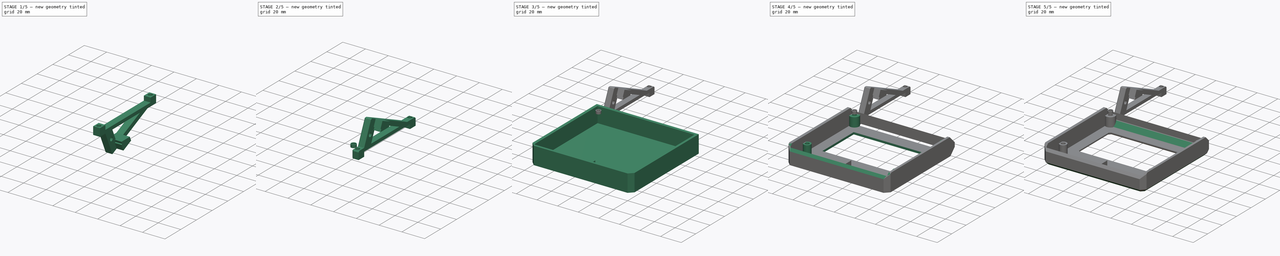
[diagram: build sequence overview — one tinted view per stage of 5, left to right]
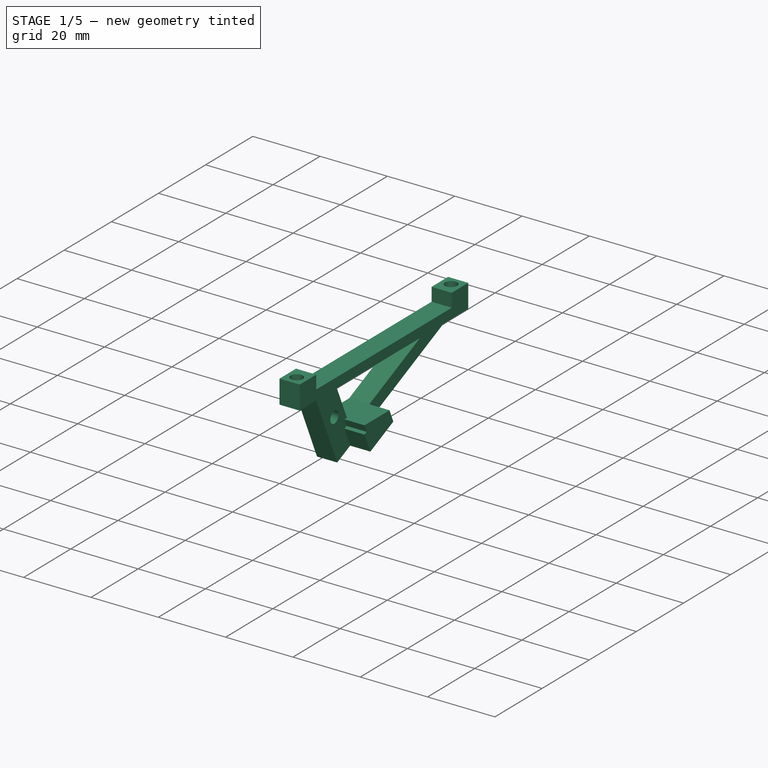
[diagram: stage 1 of 5 — iso view after this stage's code; geometry added in this stage tinted green]
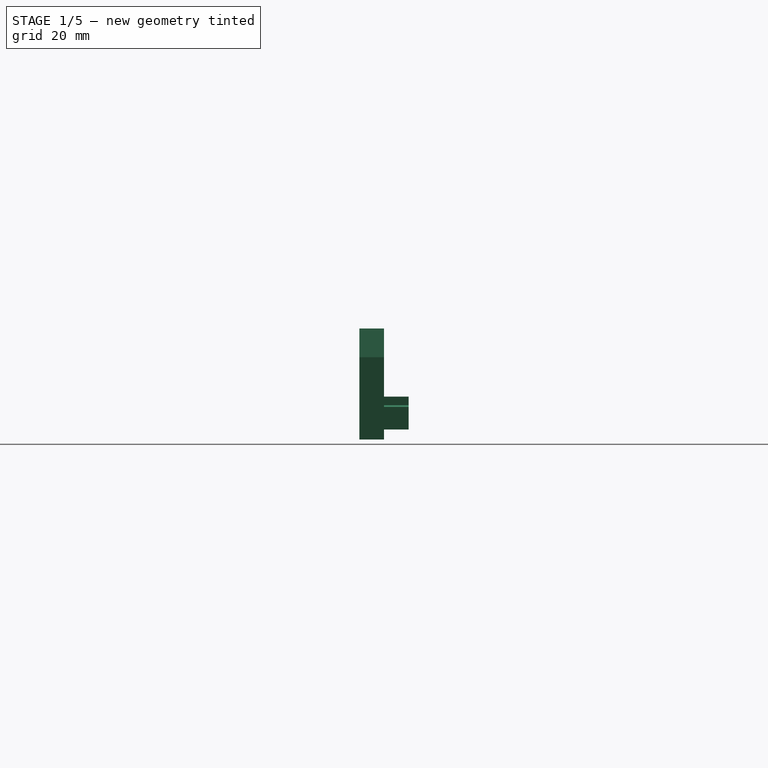
[diagram: stage 1 of 5 — front view after this stage's code; geometry added in this stage tinted green]
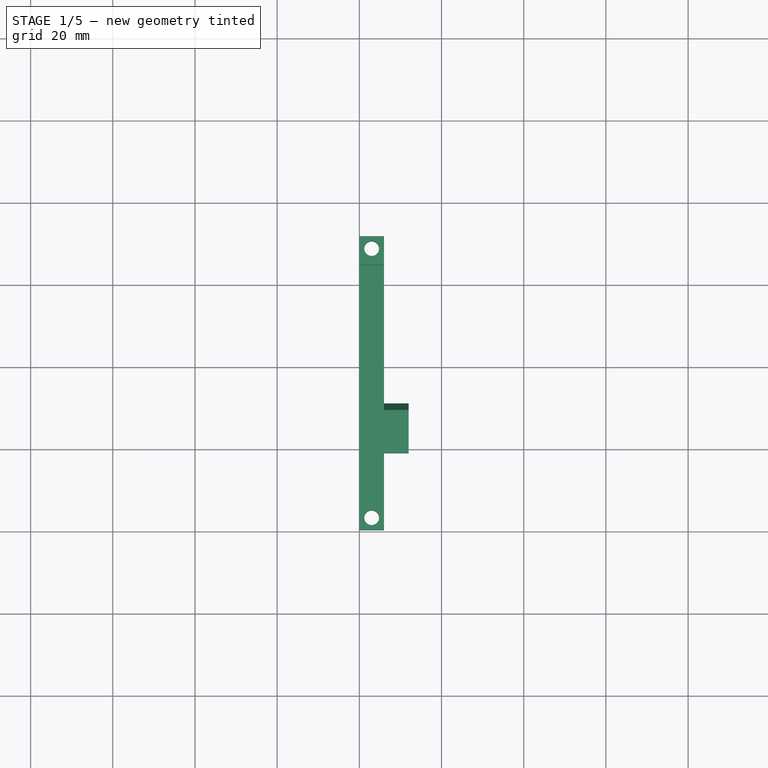
[diagram: stage 1 of 5 — top view after this stage's code; geometry added in this stage tinted green]
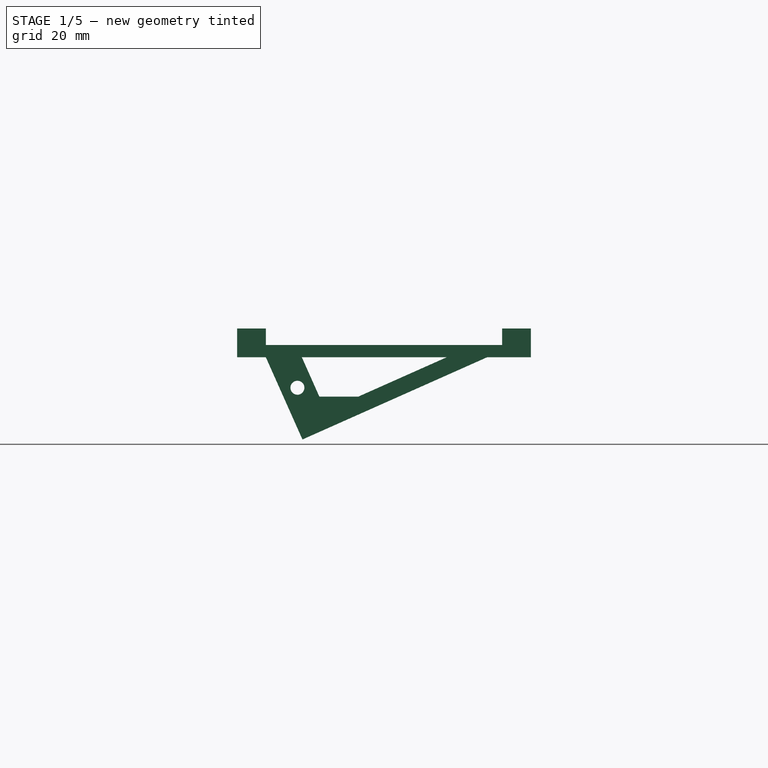
[diagram: stage 1 of 5 — right view after this stage's code; geometry added in this stage tinted green]
FCSTD DOCUMENT  (FreeCAD 0.19R24366 (Git))
Label: reprapdiscount_st7920
License: All rights reserved
LicenseURL: http://en.wikipedia.org/wiki/All_rights_reserved
objects: Sketcher::SketchObject×9, PartDesign::Pad×5, PartDesign::Pocket×4, PartDesign::Chamfer×3, PartDesign::Body×2, Spreadsheet::Sheet×1, Part::Feature×1, Part::Box×1, Part::Fuse×1, Part::FeaturePython×1, Part::Mirroring×1
note: 40 computed .brp shape members not serialized (recipe doc carries the construction recipe); baked Part::Feature solids carry a one-line shape summary decoded from their .brp

FEATURE [Sketcher::SketchObject] Sketch006
  FullyConstrained = true
  MapMode = 5
  Placement = pos=(0,0,0) rot=(0.57735,0.57735,0.57735;2.0944rad)
  Support = -> [YZ_Plane001]
  sketch-geometry (15):
    g0: LineSegment StartX=71.5 StartY=0 StartZ=0 EndX=71.5 EndY=-7 EndZ=0
    g1: LineSegment StartX=0 StartY=-7 StartZ=0 EndX=0 EndY=0 EndZ=0
    g2: LineSegment StartX=0 StartY=0 StartZ=0 EndX=7 EndY=0 EndZ=0
    g3: LineSegment StartX=7 StartY=0 StartZ=0 EndX=7 EndY=-4 EndZ=0
    g4: LineSegment StartX=7 StartY=-4 StartZ=0 EndX=64.5 EndY=-4 EndZ=0
    g5: LineSegment StartX=64.5 StartY=-4 StartZ=0 EndX=64.5 EndY=0 EndZ=0
    g6: LineSegment StartX=64.5 StartY=0 StartZ=0 EndX=71.5 EndY=0 EndZ=0
    g7: LineSegment StartX=0 StartY=-7 StartZ=0 EndX=7 EndY=-7 EndZ=0
    g8: LineSegment StartX=7 StartY=-7 StartZ=0 EndX=15.9046 EndY=-27 EndZ=0
    g9: LineSegment StartX=15.9046 StartY=-27 StartZ=0 EndX=60.8253 EndY=-7 EndZ=0
    g10: LineSegment StartX=60.8253 StartY=-7 StartZ=0 EndX=71.5 EndY=-7 EndZ=0
    g11: Circle CenterX=14.6779 CenterY=-14.4105 CenterZ=0 NormalX=0 NormalY=0 NormalZ=1 AngleXU=0 Radius=1.7
    g12: LineSegment StartX=15.7571 StartY=-7 StartZ=0 EndX=50.9909 EndY=-7 EndZ=0
    g13: LineSegment StartX=50.9909 StartY=-7 StartZ=0 EndX=21.586 EndY=-20.0919 EndZ=0
    g14: LineSegment StartX=21.586 StartY=-20.0919 StartZ=0 EndX=15.7571 EndY=-7 EndZ=0
  constraints (44):
    c: Vertical(g0)
    c: Vertical(g1)
    c: Horizontal(g2)
    c: Coincident(g2,g3)
    c: Vertical(g3)
    c: Coincident(g3,g4)
    c: Horizontal(g4)
    c: Coincident(g4,g5)
    c: Vertical(g5)
    c: Coincident(g5,g6)
    c: Horizontal(g6)
    c: Coincident(g2,g1)
    c: Coincident(g0,g6)
    c: DistanceY(g2,g5) = 0
    c: DistanceY(g4,g5) = 4
    c: DistanceX(g1,g0) = 71.5
    c: DistanceX(g1,g2) = 7
    c: DistanceX(g5,g0) = 7
    c: Coincident(g1,g-1)
    c: Horizontal(g7)
    c: Coincident(g7,g8)
    c: Coincident(g8,g9)
    c: Coincident(g9,g10)
    c: Horizontal(g10)
    c: DistanceY(g7,g1) = 7
    c: DistanceY(g10,g0) = 7
    c: Perpendicular(g8,g9)
    c: Angle(g4,g9) = 0.418879
    c: DistanceY(g8,g1) = 27
    c: Diameter(g11) = 3.4
    c: Coincident(g1,g7)
    c: Coincident(g10,g0)
    c: Horizontal(g12)
    c: Coincident(g12,g13)
    c: Coincident(g13,g14)
    c: Coincident(g14,g12)
    c: DistanceY(g12,g1) = 0
    c: Parallel(g14,g8)
    c: Parallel(g9,g13)
    c: Distance(g11,g8) = 4
    c: Distance(g11,g14) = 4
    c: DistanceX(g1,g7) = 7
    c: Distance(g11,g9) = 12
    c: Distance(g13,g9) = 4
FEATURE [PartDesign::Pad] Pad003  label="Pad"
  Direction = (1,1,1)
  Length = 6
  Length2 = 100
  Placement = pos=(0,0,0) rot=(0.57735,0.57735,0.57735;2.0944rad)
  Profile = -> Sketch006
  Type = 0
FEATURE [Sketcher::SketchObject] Sketch007
  FullyConstrained = true
  MapMode = 5
  Support = -> [XY_Plane001]
  sketch-geometry (2):
    g0: Circle CenterX=3 CenterY=68.5 CenterZ=0 NormalX=0 NormalY=0 NormalZ=1 AngleXU=0 Radius=1.8
    g1: Circle CenterX=3 CenterY=3 CenterZ=0 NormalX=0 NormalY=0 NormalZ=1 AngleXU=0 Radius=1.8
  constraints (6):
    c: Diameter(g0) = 3.6
    c: Diameter(g1) = 3.6
    c: DistanceX(g-1,g0) = 3
    c: DistanceX(g-1,g1) = 3
    c: DistanceY(g1,g0) = 65.5
    c: DistanceY(g-1,g1) = 3
FEATURE [PartDesign::Pocket] Pocket003
  BaseFeature = -> Pad003
  Length = 0
  Length2 = 100
  Placement = pos=(0,0,0) rot=(0.57735,0.57735,0.57735;2.0944rad)
  Profile = -> Sketch007
  Type = 3
  UpToFace = -> Pad003 [Face11]
FEATURE [Sketcher::SketchObject] Sketch008
  ExternalGeometry = -> [Sketch006]
  FullyConstrained = true
  MapMode = 5
  Placement = pos=(0,0,0) rot=(0.57735,0.57735,0.57735;2.0944rad)
  Support = -> [YZ_Plane001]
  sketch-geometry (6):
    g0: LineSegment StartX=21.3858 StartY=-24.5596 StartZ=0 EndX=18.9454 EndY=-19.0783 EndZ=0
    g1: LineSegment StartX=18.9454 StartY=-19.0783 StartZ=0 EndX=19.859 EndY=-18.6716 EndZ=0
    g2: LineSegment StartX=19.859 StartY=-18.6716 StartZ=0 EndX=18.9187 EndY=-16.5596 EndZ=0
    g3: LineSegment StartX=18.9187 StartY=-16.5596 StartZ=0 EndX=29.5198 EndY=-16.5596 EndZ=0
    g4: LineSegment StartX=31.1467 StartY=-20.2138 StartZ=0 EndX=21.3858 EndY=-24.5596 EndZ=0
    g5: LineSegment StartX=29.5198 StartY=-16.5596 StartZ=0 EndX=31.1467 EndY=-20.2138 EndZ=0
  constraints (18):
    c: Coincident(g0,g1)
    c: Coincident(g1,g2)
    c: Coincident(g2,g3)
    c: Horizontal(g3)
    c: Coincident(g0,g4)
    c: Parallel(g2,g0)
    c: Parallel(g-5,g4)
    c: Perpendicular(g0,g4)
    c: Parallel(g1,g4)
    c: Distance(g0,g2) = 1
    c: Distance(g-3,g2) = 3
    c: PointOnObject(g0,g-5)
    c: Coincident(g5,g3)
    c: Coincident(g5,g4)
    c: Parallel(g2,g5)
    c: PointOnObject(g3,g-4)
    c: Distance(g0,g-4) = 2
    c: DistanceY(g0,g2) = 8
FEATURE [PartDesign::Pad] Pad004
  BaseFeature = -> Pocket003
  Direction = (1,1,1)
  Length = 12
  Length2 = 100
  Placement = pos=(0,0,0) rot=(0.57735,0.57735,0.57735;2.0944rad)
  Profile = -> Sketch008
  Type = 0
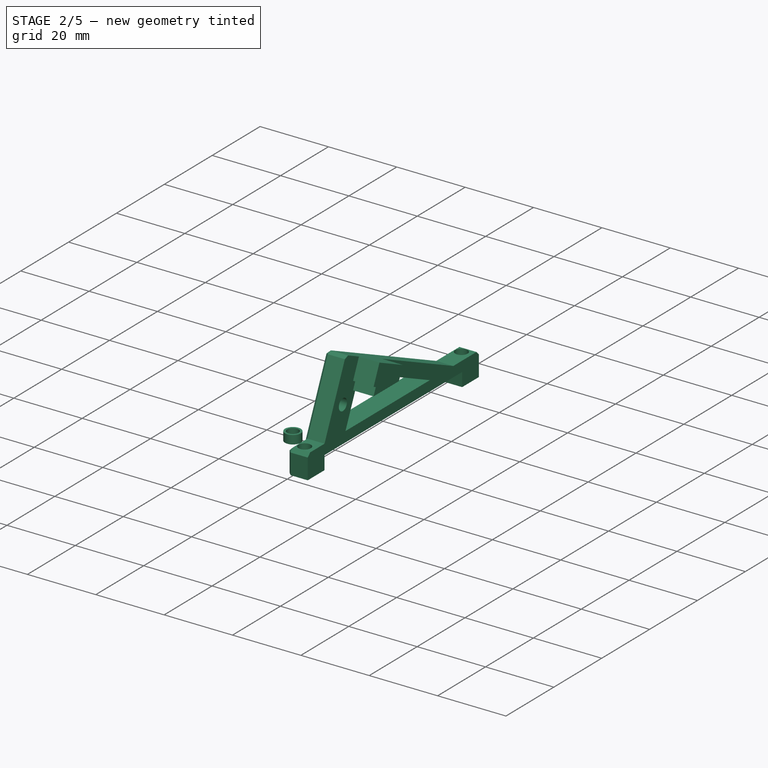
[diagram: stage 2 of 5 — iso view after this stage's code; geometry added in this stage tinted green]
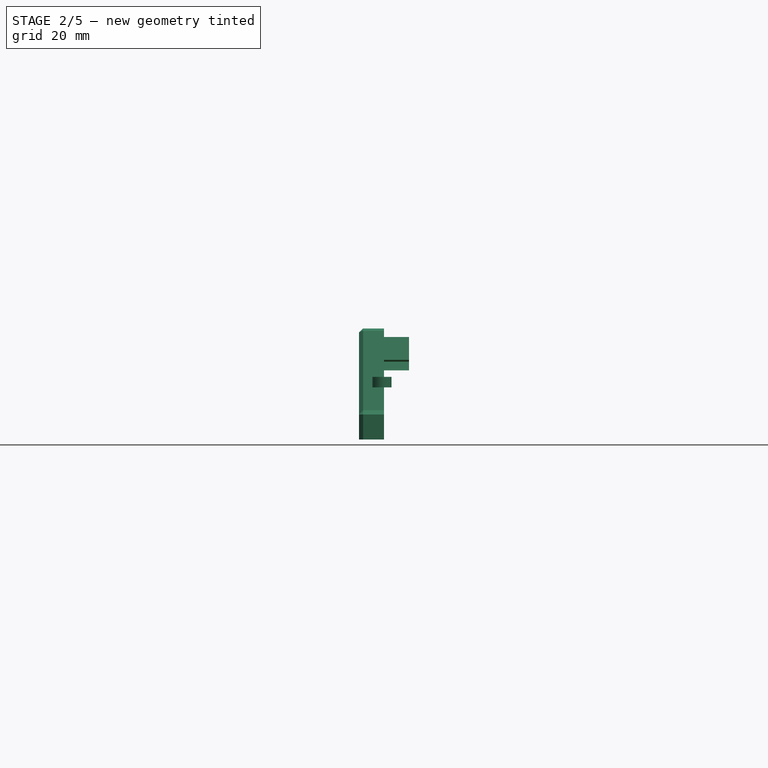
[diagram: stage 2 of 5 — front view after this stage's code; geometry added in this stage tinted green]
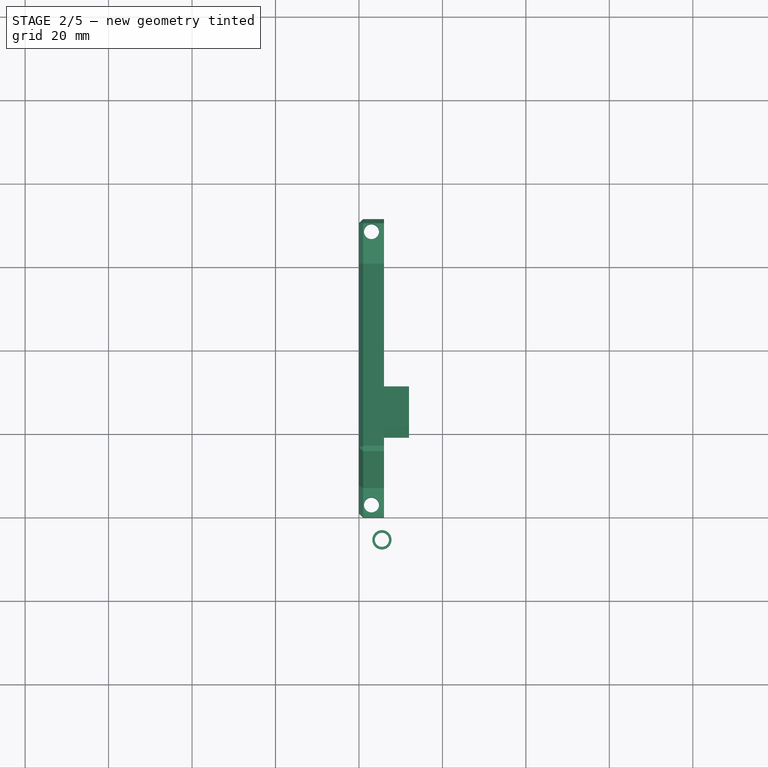
[diagram: stage 2 of 5 — top view after this stage's code; geometry added in this stage tinted green]
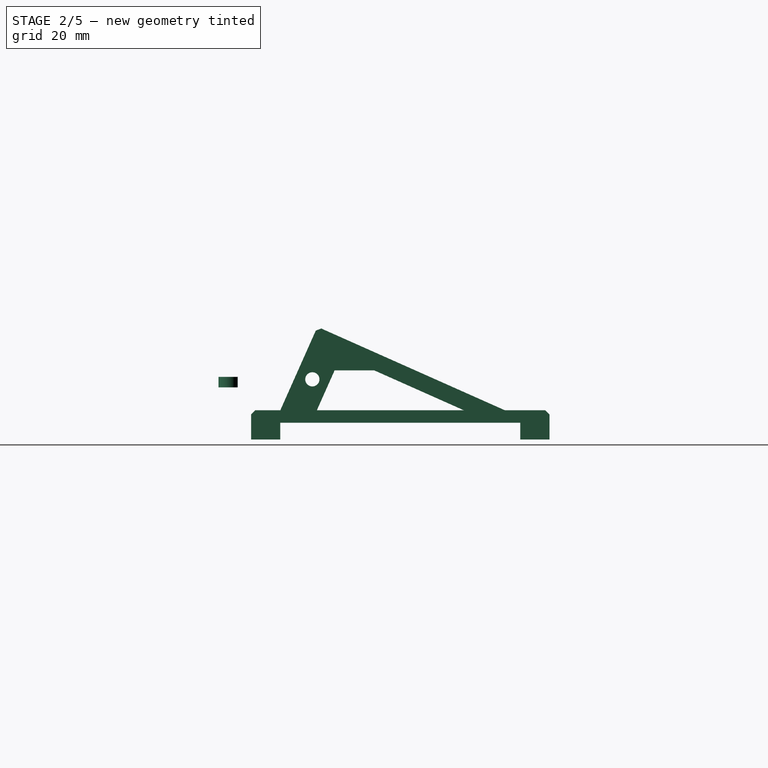
[diagram: stage 2 of 5 — right view after this stage's code; geometry added in this stage tinted green]
FEATURE [Part::FeaturePython] Tube  label="spacer"  # WARN: FeaturePython — macro-defined, semantics opaque (R4)
  AttacherType = Attacher::AttachEngine3D
  Height = 2.5
  InnerRadius = 1.7
  OuterRadius = 2.3
  Placement = pos=(5.5,-5.5,12.5) rot=(0,0,1;0rad)
FEATURE [PartDesign::Chamfer] Chamfer002
  Angle = 45
  Base = -> Pad004 [Edge24,Edge23,Edge53,Edge14,Edge13,Edge5,Edge1,Edge49,Edge62,Edge3,Edge25]
  BaseFeature = -> Pad004
  ChamferType = 0
  FlipDirection = false
  Placement = pos=(0,0,0) rot=(0.57735,0.57735,0.57735;2.0944rad)
  Size = 1
  Size2 = 1
  SupportTransform = false
FEATURE [PartDesign::Body] Body001  label="support"
  Group = -> [Sketch006,Pad003,Sketch007,Pocket003,Sketch008,Pad004,Chamfer002]
  Origin = -> Origin001
  Tip = -> Chamfer002
FEATURE [Part::Mirroring] Part__Mirroring  label="support-mirror"
  Base = (0,0,0)
  Normal = (0,0,1)
  Source = -> Body001
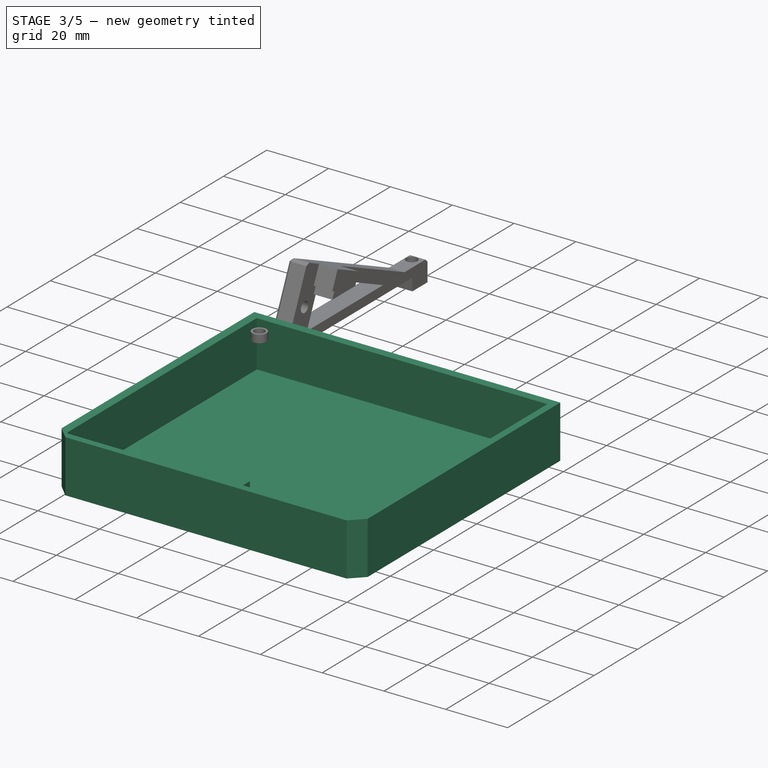
[diagram: stage 3 of 5 — iso view after this stage's code; geometry added in this stage tinted green]
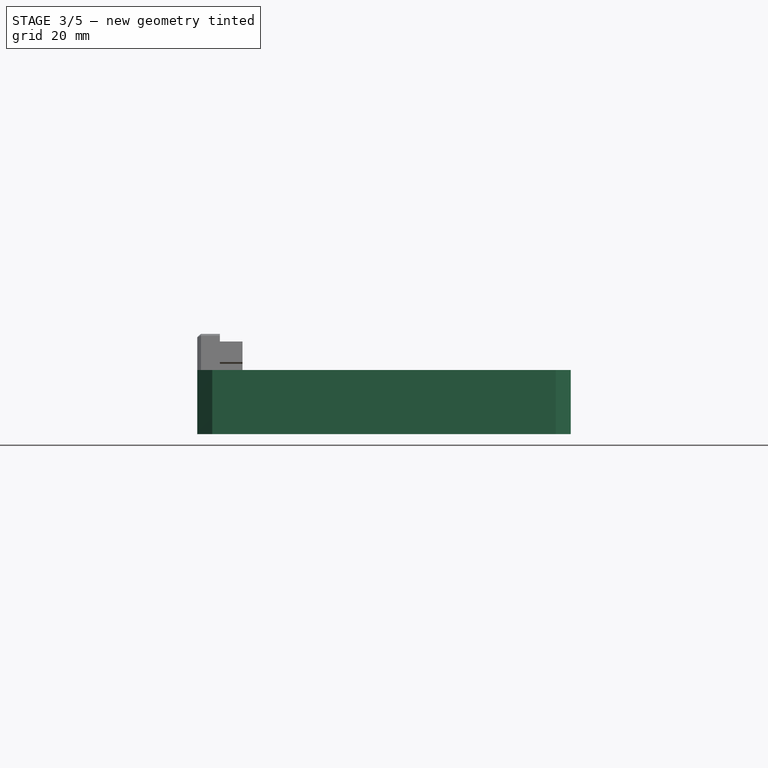
[diagram: stage 3 of 5 — front view after this stage's code; geometry added in this stage tinted green]
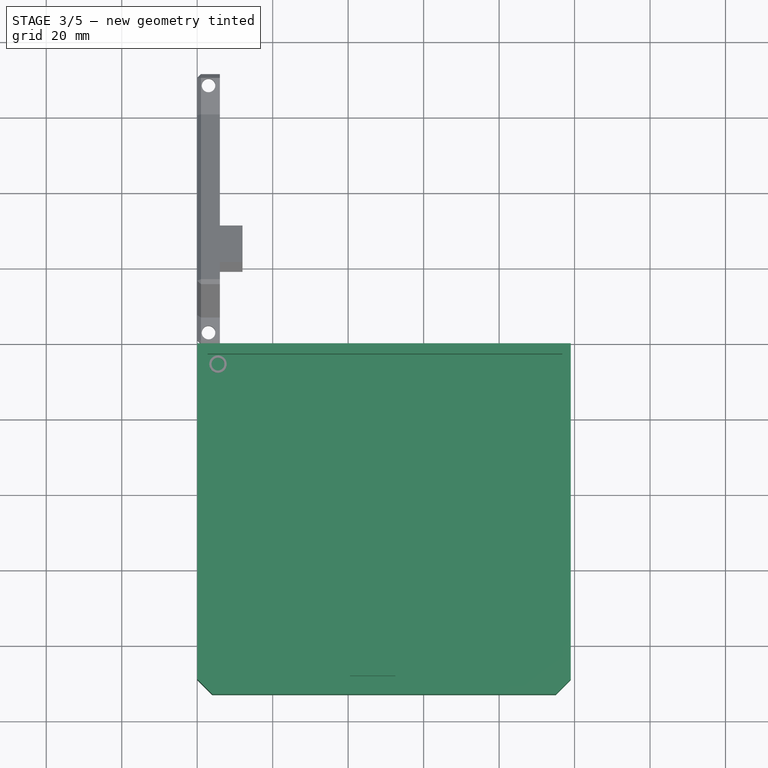
[diagram: stage 3 of 5 — top view after this stage's code; geometry added in this stage tinted green]
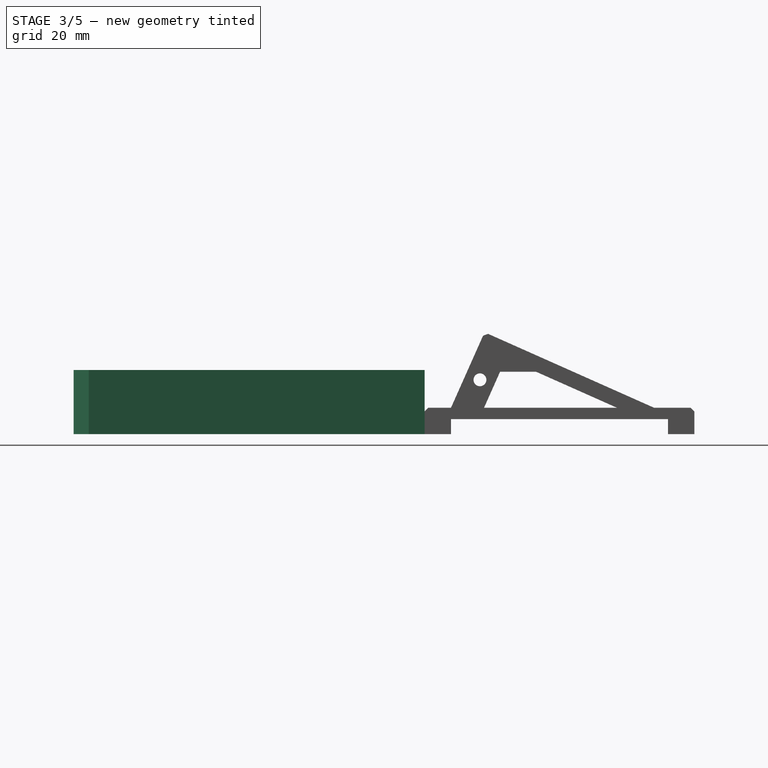
[diagram: stage 3 of 5 — right view after this stage's code; geometry added in this stage tinted green]
FEATURE [Sketcher::SketchObject] Sketch
  FullyConstrained = true
  MapMode = 5
  Support = -> [XY_Plane]
  expr: Constraints[9] = <<parameters>>.board_height + <<parameters>>.wall_thickness * 2 + 1
  expr: Constraints[6] = <<parameters>>.board_width + <<parameters>>.wall_thickness * 2 + 0.5
  sketch-geometry (6):
    g0: LineSegment StartX=0 StartY=0 StartZ=0 EndX=99 EndY=0 EndZ=0
    g1: LineSegment StartX=99 StartY=0 StartZ=0 EndX=99 EndY=-89 EndZ=0
    g2: LineSegment StartX=95 StartY=-93 StartZ=0 EndX=4 EndY=-93 EndZ=0
    g3: LineSegment StartX=0 StartY=-89 StartZ=0 EndX=0 EndY=0 EndZ=0
    g4: LineSegment StartX=0 StartY=-89 StartZ=0 EndX=4 EndY=-93 EndZ=0
    g5: LineSegment StartX=95 StartY=-93 StartZ=0 EndX=99 EndY=-89 EndZ=0
  constraints (18):
    c: Coincident(g0,g1)
    c: Coincident(g3,g0)
    c: Horizontal(g0)
    c: Horizontal(g2)
    c: Vertical(g1)
    c: Vertical(g3)
    c: DistanceX(g0,g0) = 99
    c: DistanceY(g-1,g0) = 0
    c: DistanceX(g0,g-1) = 0
    c: DistanceY(g4,g0) = 93
    c: Coincident(g2,g4)
    c: Coincident(g5,g2)
    c: Perpendicular(g4,g5)
    c: Coincident(g4,g3)
    c: Coincident(g1,g5)
    c: DistanceX(g0,g2) = 4
    c: DistanceX(g2,g1) = 4
    c: DistanceY(g3,g1) = 0
FEATURE [Spreadsheet::Sheet] Spreadsheet  label="parameters"
  cells = A1=board_height; B1(board_height)=87; A2=board_width; B2(board_width)=93.5; A3=hole_spacing_horizontal; B3(hole_spacing_horizontal)=88; A4=hole_spacing_vertical; B4(hole_spacing_vertical)=65.5; A5=hole_diameter; B5(hole_diameter)=3; A6=knob_axis_diameter; B6(knob_axis_diameter)=7.5; A7=knob_from_top; B7(knob_from_top)=79; A8=knob_from_right; B8(knob_from_right)=10; A9=kill_from_right; B9(kill_from_right)=43.5; A10=lcd_width; B10(lcd_width)=74; A11=lcd_height; B11(lcd_height)=43; A12=lcd_from_top; B12(lcd_from_top)=13.5; A13=lcd_from_right; B13(lcd_from_right)=9.5; A14=wall_thickness; B14(wall_thickness)=2.5; A15=board_thickness; B15(board_thickness)=2.5; A16=board_thickness2; B16(board_thickness2)=10; A17=lcd_thickness; B17(lcd_thickness)=4; A18=kill_size; B18(kill_size)=10
FEATURE [PartDesign::Pad] Pad  label="outerbox"
  Direction = (1,1,1)
  Length = 17
  Length2 = 100
  Profile = -> Sketch
  Type = 0
FEATURE [Sketcher::SketchObject] Sketch001
  FullyConstrained = true
  MapMode = 2
  Placement = pos=(0,0,17) rot=(0,0,1;0rad)
  expr: Constraints[9] = <<parameters>>.board_height + 1
  expr: Constraints[7] = -(<<parameters>>.wall_thickness + 0.25)
  expr: Constraints[6] = <<parameters>>.board_width + 0.5
  expr: Constraints[8] = -(<<parameters>>.wall_thickness + 0.25)
  sketch-geometry (6):
    g0: LineSegment StartX=2.75 StartY=-2.75 StartZ=0 EndX=96.75 EndY=-2.75 EndZ=0
    g1: LineSegment StartX=96.75 StartY=-2.75 StartZ=0 EndX=96.75 EndY=-90.25 EndZ=0
    g2: LineSegment StartX=96.25 StartY=-90.75 StartZ=0 EndX=3.25 EndY=-90.75 EndZ=0
    g3: LineSegment StartX=2.75 StartY=-90.25 StartZ=0 EndX=2.75 EndY=-2.75 EndZ=0
    g4: LineSegment StartX=2.75 StartY=-90.25 StartZ=0 EndX=3.25 EndY=-90.75 EndZ=0
    g5: LineSegment StartX=96.25 StartY=-90.75 StartZ=0 EndX=96.75 EndY=-90.25 EndZ=0
  constraints (18):
    c: Coincident(g0,g1)
    c: Coincident(g3,g0)
    c: Horizontal(g0)
    c: Horizontal(g2)
    c: Vertical(g1)
    c: Vertical(g3)
    c: DistanceX(g0,g0) = 94
    c: DistanceX(g0,g-1) = -2.75
    c: DistanceY(g-1,g0) = -2.75
    c: DistanceY(g2,g0) = 88
    c: Coincident(g4,g3)
    c: Coincident(g4,g2)
    c: Coincident(g5,g2)
    c: Coincident(g5,g1)
    c: Perpendicular(g4,g5)
    c: DistanceY(g3,g1) = 0
    c: DistanceY(g2,g3) = 0.5
    c: DistanceX(g2,g1) = 0.5
FEATURE [Sketcher::SketchObject] Sketch002
  AttachmentOffset = pos=(0,0,2) rot=(0,0,1;0rad)
  FullyConstrained = true
  MapMode = 2
  Placement = pos=(0,0,482) rot=(0,0,1;0rad)
  Support = -> [Sketch002]
  expr: Constraints[28] = -(<<parameters>>.knob_from_top + <<parameters>>.wall_thickness + 0.5)
  expr: Constraints[26] = <<parameters>>.kill_from_right + <<parameters>>.wall_thickness + 0.5
  expr: Constraints[24] = <<parameters>>.kill_size / 2
  expr: Constraints[12] = <<parameters>>.knob_axis_diameter + 0.5
  expr: Constraints[22] = <<parameters>>.kill_size / 2
  expr: Constraints[25] = <<parameters>>.kill_size
  expr: Constraints[23] = <<parameters>>.kill_size
  expr: Constraints[8] = <<parameters>>.lcd_width + 0.5
  expr: Constraints[9] = <<parameters>>.lcd_height + 0.5
  expr: Constraints[10] = <<parameters>>.wall_thickness + <<parameters>>.lcd_from_right + 0.5
  expr: Constraints[11] = <<parameters>>.wall_thickness + <<parameters>>.lcd_from_top + 0.5
  expr: Constraints[13] = <<parameters>>.knob_from_right + <<parameters>>.wall_thickness + 0.25
  sketch-geometry (10):
    g0: LineSegment StartX=12.5 StartY=-16.5 StartZ=0 EndX=87 EndY=-16.5 EndZ=0
    g1: LineSegment StartX=87 StartY=-16.5 StartZ=0 EndX=87 EndY=-60 EndZ=0
    g2: LineSegment StartX=87 StartY=-60 StartZ=0 EndX=12.5 EndY=-60 EndZ=0
    g3: LineSegment StartX=12.5 StartY=-60 StartZ=0 EndX=12.5 EndY=-16.5 EndZ=0
    g4: Circle CenterX=12.75 CenterY=-82 CenterZ=0 NormalX=0 NormalY=0 NormalZ=1 AngleXU=0 Radius=4
    g5: LineSegment StartX=41.5 StartY=-77 StartZ=0 EndX=51.5 EndY=-77 EndZ=0
    g6: LineSegment StartX=51.5 StartY=-77 StartZ=0 EndX=51.5 EndY=-87 EndZ=0
    g7: LineSegment StartX=51.5 StartY=-87 StartZ=0 EndX=41.5 EndY=-87 EndZ=0
    g8: LineSegment StartX=41.5 StartY=-87 StartZ=0 EndX=41.5 EndY=-77 EndZ=0
    g9: GeomPoint X=46.5 Y=-82 Z=0
  constraints (29):
    c: Coincident(g0,g1)
    c: Coincident(g1,g2)
    c: Coincident(g2,g3)
    c: Coincident(g3,g0)
    c: Horizontal(g0)
    c: Horizontal(g2)
    c: Vertical(g1)
    c: Vertical(g3)
    c: DistanceX(g0,g0) = 74.5
    c: DistanceY(g2,g0) = 43.5
    c: DistanceX(g-1,g0) = 12.5
    c: DistanceY(g0,g-1) = 16.5
    c: Diameter(g4) = 8
    c: DistanceX(g-1,g4) = 12.75
    c: Coincident(g5,g6)
    c: Coincident(g6,g7)
    c: Coincident(g7,g8)
    c: Coincident(g8,g5)
    c: Horizontal(g5)
    c: Horizontal(g7)
    c: Vertical(g6)
    c: Vertical(g8)
    c: DistanceX(g5,g9) = 5
    c: DistanceX(g5,g5) = 10
    c: DistanceY(g9,g5) = 5
    c: DistanceY(g7,g5) = 10
    c: DistanceX(g-1,g9) = 46.5
    c: DistanceY(g9,g4) = 0
    c: DistanceY(g4) = -82
FEATURE [PartDesign::Pocket] Pocket
  BaseFeature = -> Pad
  Length = 15
  Length2 = 100
  Profile = -> Sketch001
  Type = 0
FEATURE [PartDesign::Body] Body  label="face"
  Group = -> [Sketch,Pad,Sketch001,Pocket,Sketch002,Pocket001,Sketch003,Sketch004,Pad001,Pocket002,Sketch005,Pad002,Chamfer,Chamfer001]
  Origin = -> Origin
  Tip = -> Chamfer001
FEATURE [Part::Feature] _x_lcd_button001_solid  label="_x_lcd_button001 (Solid)"
  Placement = pos=(-113.5,203,0) rot=(0,0,1;0rad)
  shape: bbox 12 x 11 x 4 mm, 140 faces (baked)
FEATURE [Part::Box] Box  label="Cube"
  AttacherType = Attacher::AttachEngine3D
  Height = 7
  Length = 12
  Placement = pos=(0,0,-7) rot=(0,0,1;0rad)
  Width = 11
FEATURE [Part::Fuse] Fusion  label="kill-button"
  Base = -> _x_lcd_button001_solid
  Placement = pos=(52.5,-88,4) rot=(0,1,0;3.14159rad)
  Tool = -> Box
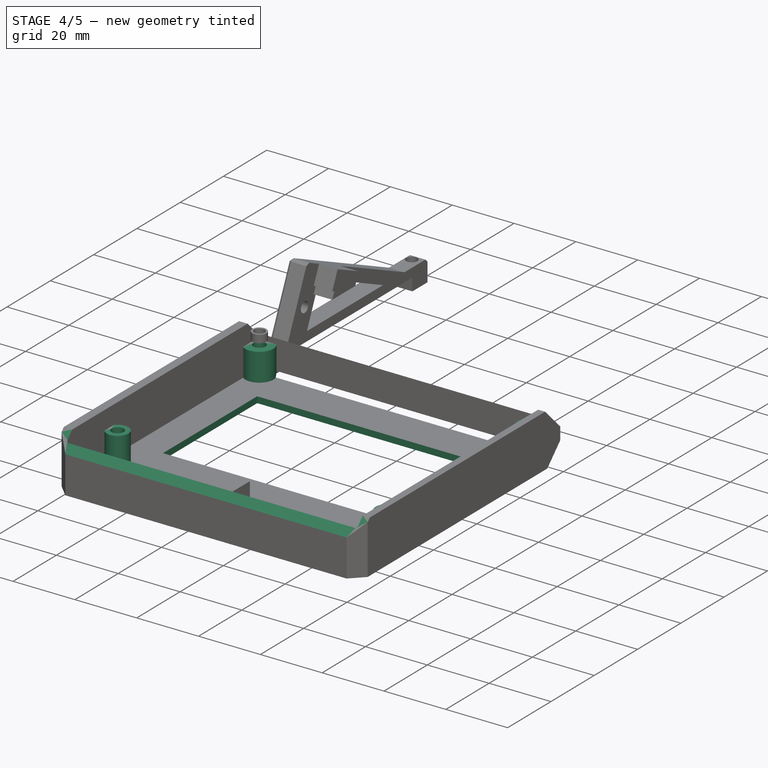
[diagram: stage 4 of 5 — iso view after this stage's code; geometry added in this stage tinted green]
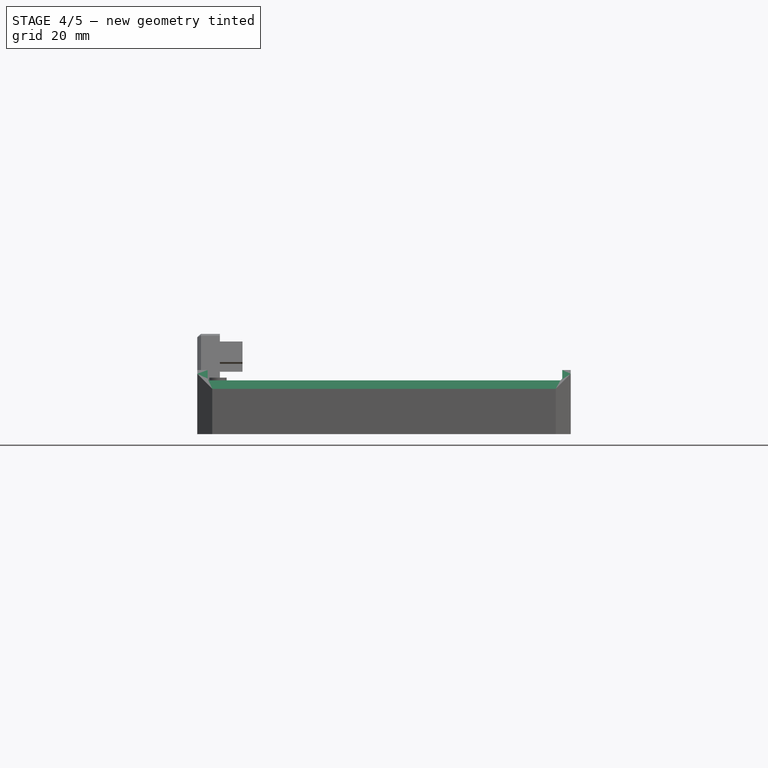
[diagram: stage 4 of 5 — front view after this stage's code; geometry added in this stage tinted green]
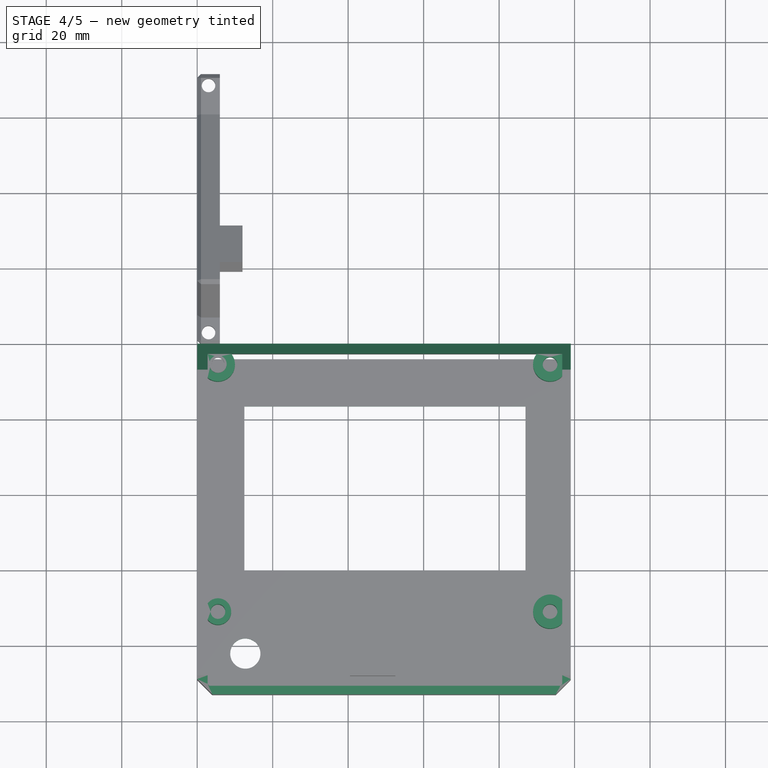
[diagram: stage 4 of 5 — top view after this stage's code; geometry added in this stage tinted green]
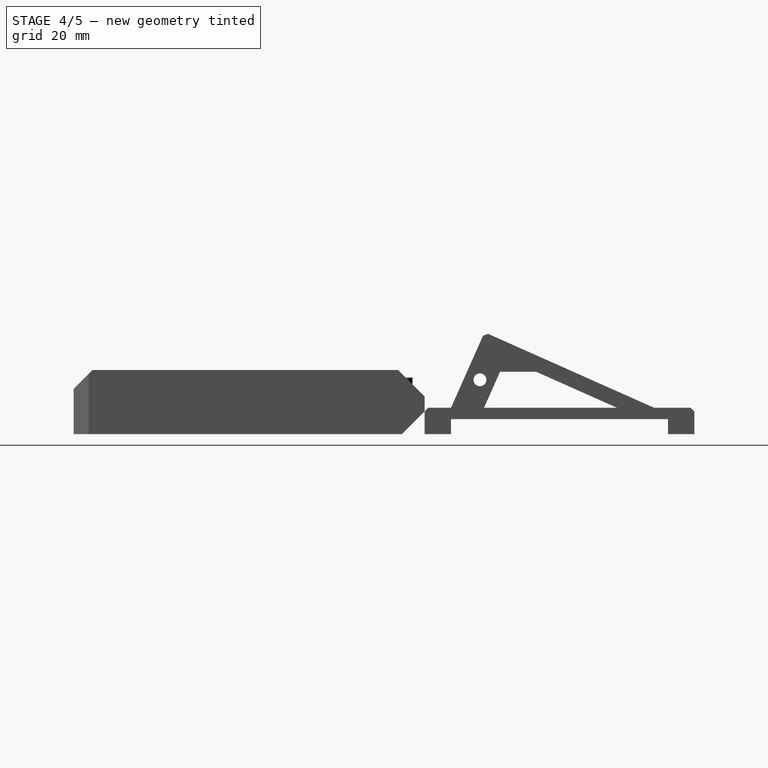
[diagram: stage 4 of 5 — right view after this stage's code; geometry added in this stage tinted green]
FEATURE [PartDesign::Pocket] Pocket001
  BaseFeature = -> Pocket
  Length = 0
  Length2 = 100
  Profile = -> Sketch002
  Type = 3
  UpToFace = -> Pocket [Face4]
FEATURE [Sketcher::SketchObject] Sketch003
  AttachmentOffset = pos=(0,0,2) rot=(0,0,1;0rad)
  FullyConstrained = true
  MapMode = 2
  Placement = pos=(0,0,2) rot=(0,0,1;0rad)
  expr: Constraints[13] = <<parameters>>.hole_spacing_horizontal
  expr: Constraints[15] = <<parameters>>.hole_spacing_vertical
  sketch-geometry (8):
    g0: Circle CenterX=5.5 CenterY=-5.5 CenterZ=0 NormalX=0 NormalY=0 NormalZ=1 AngleXU=0 Radius=1.95
    g1: Circle CenterX=5.5 CenterY=-5.5 CenterZ=0 NormalX=0 NormalY=0 NormalZ=1 AngleXU=0 Radius=4.5
    g2: Circle CenterX=93.5 CenterY=-5.5 CenterZ=0 NormalX=0 NormalY=0 NormalZ=1 AngleXU=0 Radius=1.95
    g3: Circle CenterX=93.5 CenterY=-5.5 CenterZ=0 NormalX=0 NormalY=0 NormalZ=1 AngleXU=0 Radius=4.5
    g4: Circle CenterX=5.5 CenterY=-71 CenterZ=0 NormalX=0 NormalY=0 NormalZ=1 AngleXU=0 Radius=1.95
    g5: Circle CenterX=5.5 CenterY=-71 CenterZ=0 NormalX=0 NormalY=0 NormalZ=1 AngleXU=0 Radius=3.5
    g6: Circle CenterX=93.5 CenterY=-71 CenterZ=0 NormalX=0 NormalY=0 NormalZ=1 AngleXU=0 Radius=1.95
    g7: Circle CenterX=93.5 CenterY=-71 CenterZ=0 NormalX=0 NormalY=0 NormalZ=1 AngleXU=0 Radius=4.5
  constraints (20):
    c: Coincident(g1,g0)
    c: Coincident(g3,g2)
    c: Coincident(g5,g4)
    c: Coincident(g7,g6)
    c: Diameter(g6) = 3.9
    c: Diameter(g7) = 9
    c: Diameter(g4) = 3.9
    c: Diameter(g5) = 7
    c: Diameter(g0) = 3.9
    c: Diameter(g1) = 9
    c: Diameter(g2) = 3.9
    c: Diameter(g3) = 9
    c: DistanceX(g-1,g0) = 5.5
    c: DistanceX(g0,g2) = 88
    c: DistanceX(g4,g0) = 0
    c: DistanceY(g4,g0) = 65.5
    c: DistanceY(g4,g6) = 0
    c: DistanceY(g0,g-1) = 5.5
    c: DistanceY(g0,g2) = 0
    c: DistanceX(g2,g6) = 0
FEATURE [Sketcher::SketchObject] Sketch004
  FullyConstrained = true
  MapMode = 5
  Placement = pos=(0,0,0) rot=(0.57735,0.57735,0.57735;2.0944rad)
  Support = -> [YZ_Plane]
  sketch-geometry (9):
    g0: LineSegment StartX=-93 StartY=24.5 StartZ=0 EndX=-93 EndY=12 EndZ=0
    g1: LineSegment StartX=-93 StartY=12 StartZ=0 EndX=-80.5 EndY=24.5 EndZ=0
    g2: LineSegment StartX=-80.5 StartY=24.5 StartZ=0 EndX=-93 EndY=24.5 EndZ=0
    g3: LineSegment StartX=-12.5 StartY=22.5 StartZ=0 EndX=0 EndY=10 EndZ=0
    g4: LineSegment StartX=0 StartY=10 StartZ=0 EndX=0 EndY=22.5 EndZ=0
    g5: LineSegment StartX=0 StartY=22.5 StartZ=0 EndX=-12.5 EndY=22.5 EndZ=0
    g6: LineSegment StartX=0 StartY=9e-16 StartZ=0 EndX=0 EndY=6 EndZ=0
    g7: LineSegment StartX=0 StartY=6 StartZ=0 EndX=-6 EndY=9e-16 EndZ=0
    g8: LineSegment StartX=-6 StartY=9e-16 StartZ=0 EndX=0 EndY=9e-16 EndZ=0
  constraints (26):
    c: Vertical(g0)
    c: Coincident(g0,g1)
    c: Coincident(g1,g2)
    c: Horizontal(g2)
    c: Coincident(g3,g4)
    c: Coincident(g4,g5)
    c: Coincident(g5,g3)
    c: Horizontal(g5)
    c: Vertical(g4)
    c: Coincident(g2,g0)
    c: DistanceY(g0,g0) = 12.5
    c: DistanceX(g0,g1) = 12.5
    c: DistanceX(g3,g4) = 12.5
    c: DistanceY(g3,g4) = 12.5
    c: DistanceY(g-1,g3) = 10
    c: DistanceY(g0) = 12
    c: DistanceX(g0) = -93
    c: DistanceX(g3) = 0
    c: Coincident(g6,g7)
    c: Coincident(g7,g8)
    c: Horizontal(g8)
    c: Coincident(g8,g6)
    c: Coincident(g-1,g6)
    c: Vertical(g6)
    c: DistanceY(g6,g6) = 6
    c: DistanceX(g7,g6) = 6
FEATURE [PartDesign::Pad] Pad001
  BaseFeature = -> Pocket001
  Direction = (1,1,1)
  Length = 9
  Length2 = 100
  Profile = -> Sketch003
  Type = 0
FEATURE [PartDesign::Pocket] Pocket002
  BaseFeature = -> Pad001
  Length = 0
  Length2 = 100
  Profile = -> Sketch004
  Type = 3
  UpToFace = -> Pad001 [Face7]
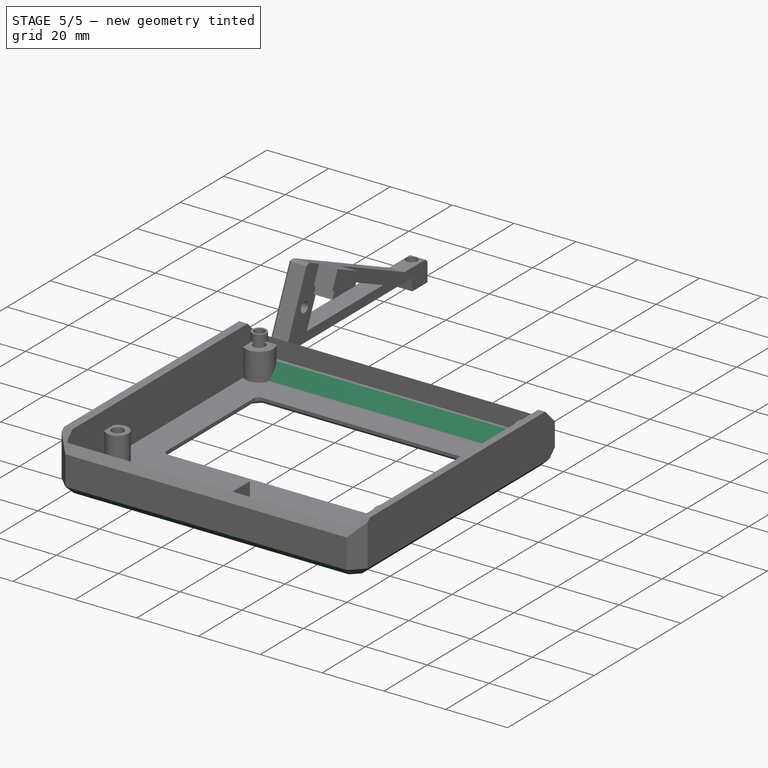
[diagram: stage 5 of 5 — iso view after this stage's code; geometry added in this stage tinted green]
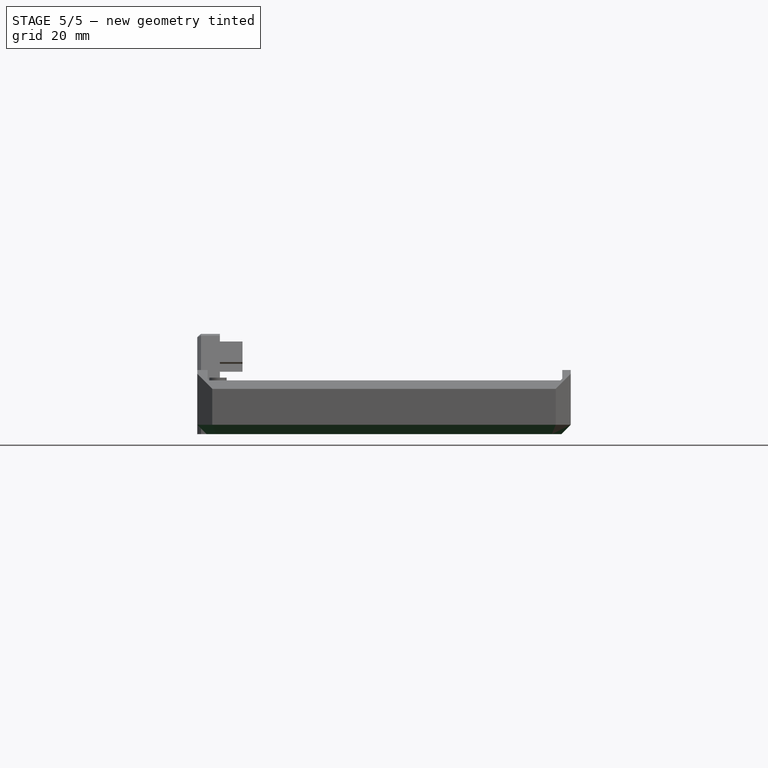
[diagram: stage 5 of 5 — front view after this stage's code; geometry added in this stage tinted green]
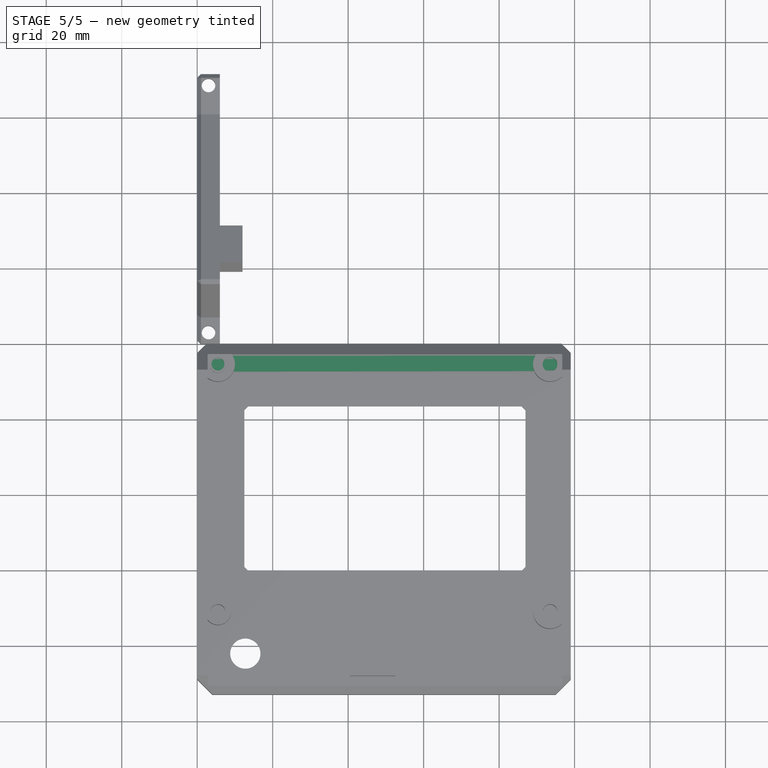
[diagram: stage 5 of 5 — top view after this stage's code; geometry added in this stage tinted green]
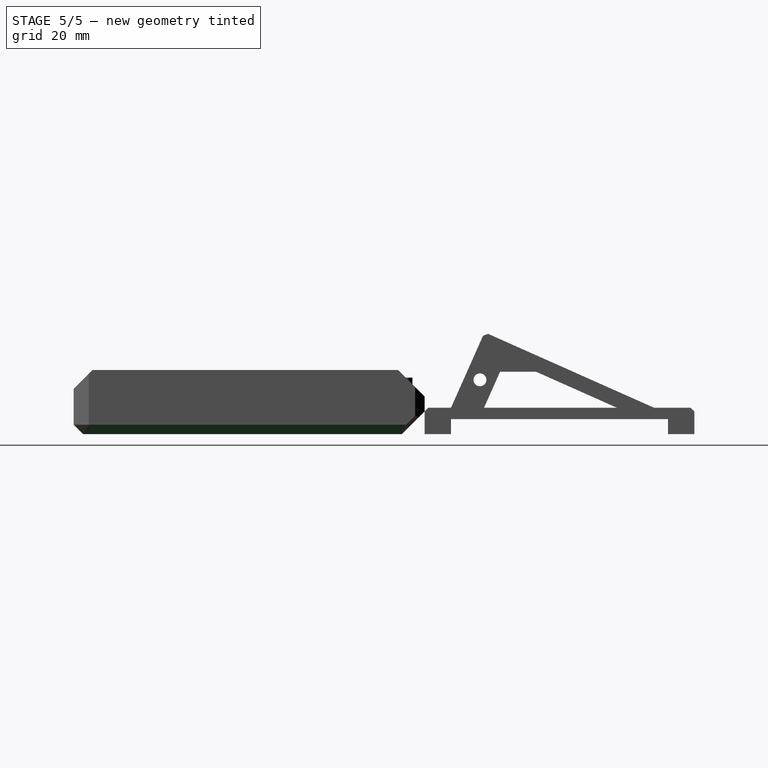
[diagram: stage 5 of 5 — right view after this stage's code; geometry added in this stage tinted green]
FEATURE [Sketcher::SketchObject] Sketch005
  FullyConstrained = true
  MapMode = 5
  Placement = pos=(0,0,0) rot=(0.57735,0.57735,0.57735;2.0944rad)
  Support = -> [YZ_Plane]
  sketch-geometry (4):
    g0: LineSegment StartX=0 StartY=6 StartZ=0 EndX=-6 EndY=0 EndZ=0
    g1: LineSegment StartX=-6 StartY=0 StartZ=0 EndX=-9.54 EndY=0 EndZ=0
    g2: LineSegment StartX=-9.54 StartY=0 StartZ=0 EndX=0 EndY=9.54 EndZ=0
    g3: LineSegment StartX=0 StartY=9.54 StartZ=0 EndX=0 EndY=6 EndZ=0
  constraints (12):
    c: Coincident(g0,g1)
    c: Horizontal(g1)
    c: Coincident(g1,g2)
    c: Coincident(g2,g3)
    c: Coincident(g3,g0)
    c: Vertical(g3)
    c: DistanceX(g0,g-1) = 0
    c: DistanceY(g0,g-1) = 0
    c: DistanceY(g0,g0) = 6
    c: DistanceX(g0,g-1) = 6
    c: Parallel(g0,g2)
    c: DistanceY(g0,g2) = 3.54
FEATURE [PartDesign::Pad] Pad002
  BaseFeature = -> Pocket002
  Direction = (1,1,1)
  Length = 10
  Length2 = 100
  Profile = -> Sketch005
  Type = 3
  UpToFace = -> Pocket002 [Face11]
FEATURE [PartDesign::Chamfer] Chamfer
  Angle = 45
  Base = -> Pad002 [Edge11,Edge10,Edge9,Edge8,Edge1,Edge32,Edge3]
  BaseFeature = -> Pad002
  ChamferType = 0
  FlipDirection = false
  Size = 2.5
  Size2 = 1
  SupportTransform = false
FEATURE [PartDesign::Chamfer] Chamfer001
  Angle = 45
  Base = -> Chamfer [Edge14,Edge1,Edge62,Edge61,Edge60,Edge59,Edge56,Edge57,Edge55,Edge54,Edge58,Edge116,Edge114,Edge118,Edge113]
  BaseFeature = -> Chamfer
  ChamferType = 0
  FlipDirection = false
  Size = 1
  Size2 = 1
  SupportTransform = false
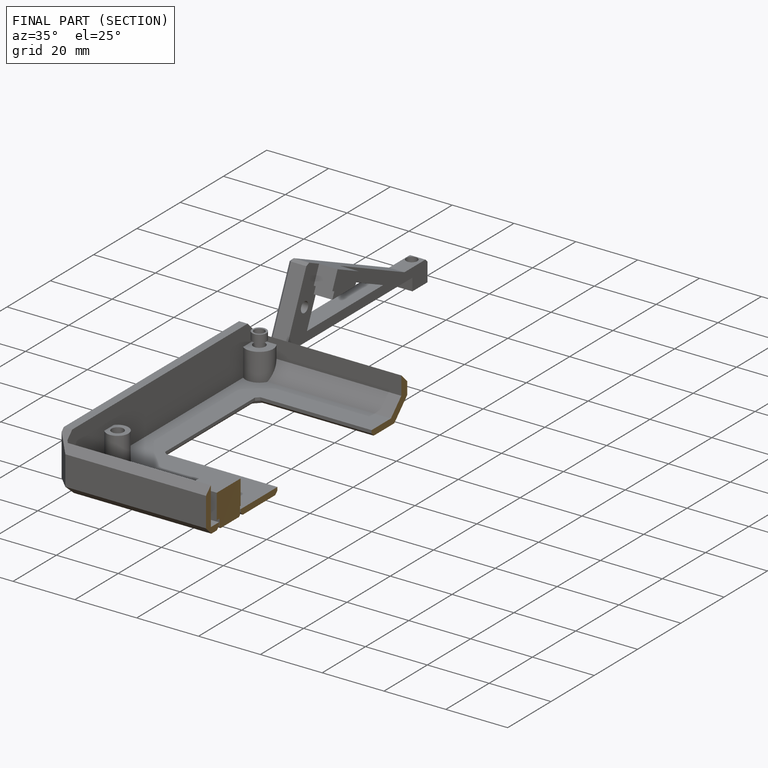
[diagram: finished part — half-section view (interior)]
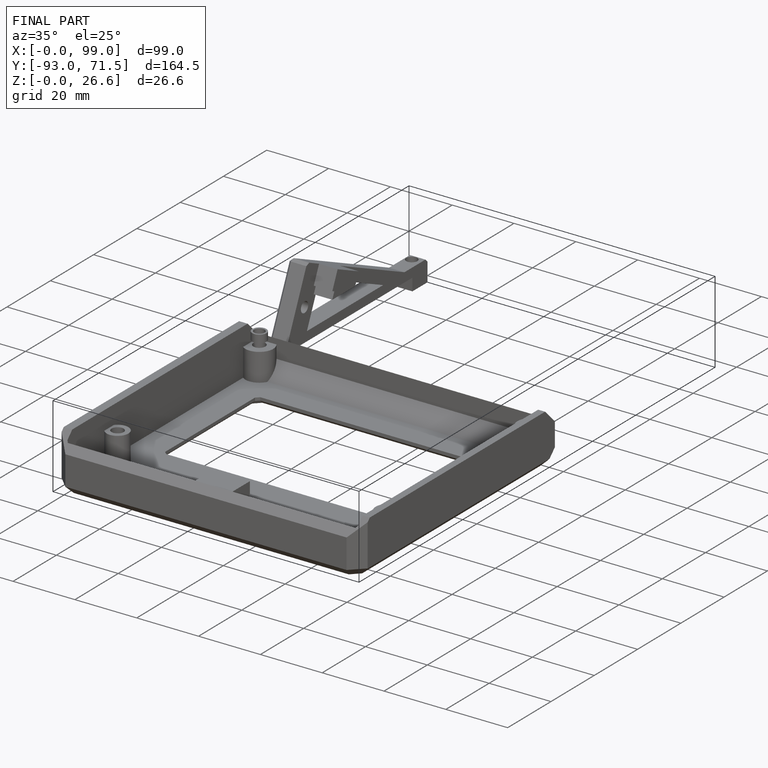
[diagram: finished part — iso view with bounding-box wireframe]
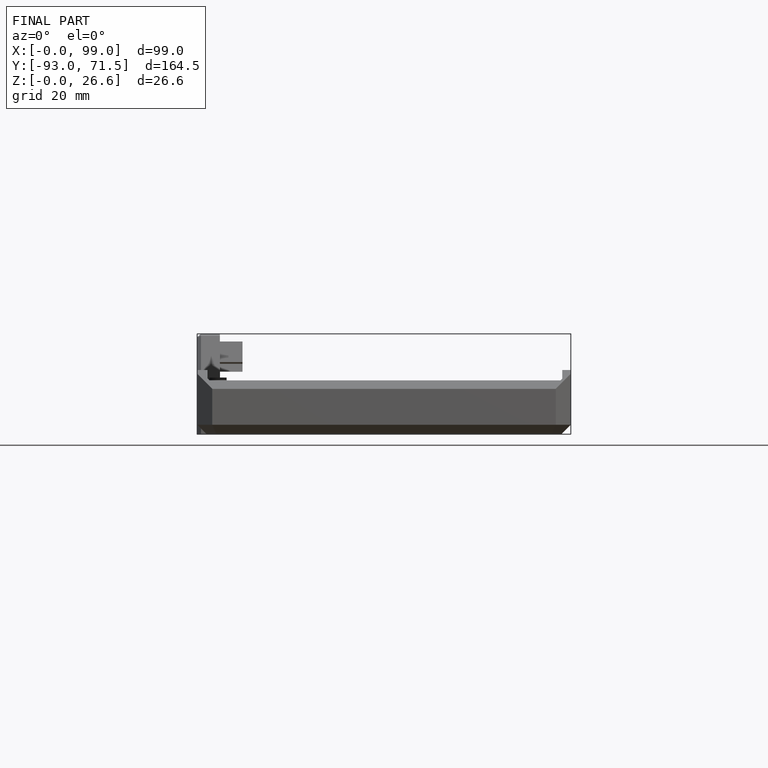
[diagram: finished part — front view with bounding-box wireframe]
